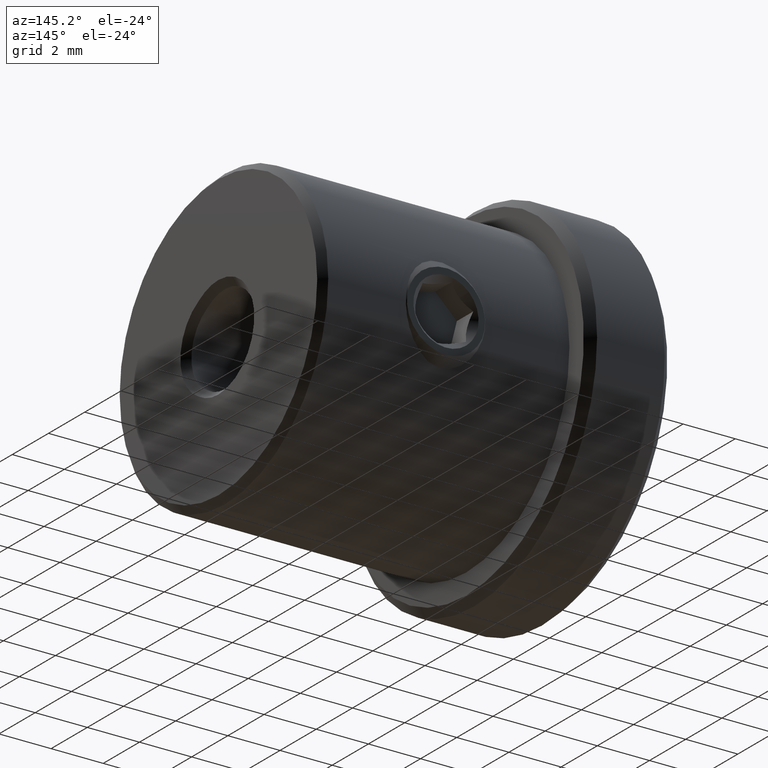
[diagram: clean part render]
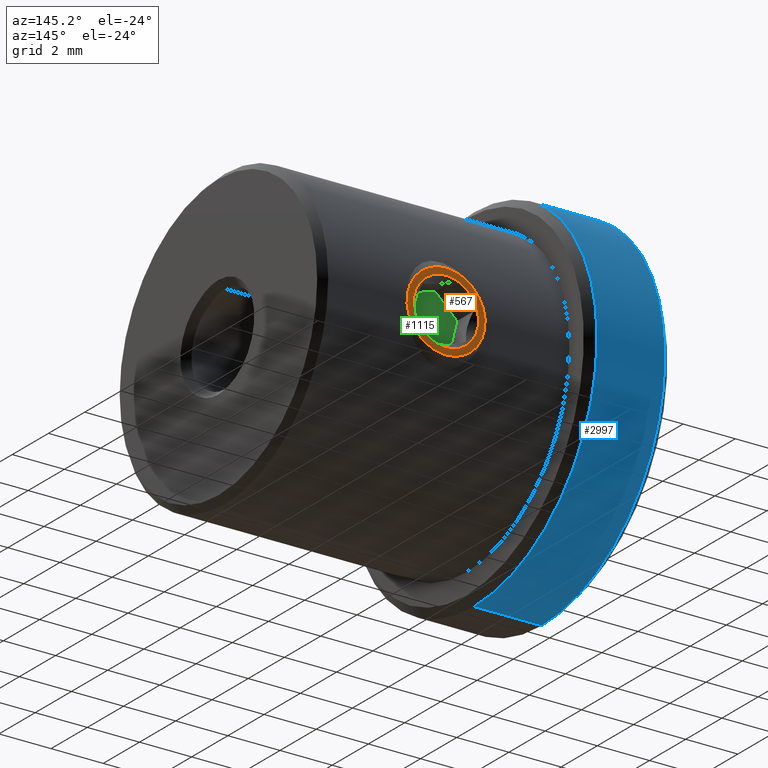
[diagram: same view with three faces highlighted in distinct colors, each labeled with its STEP entity id]
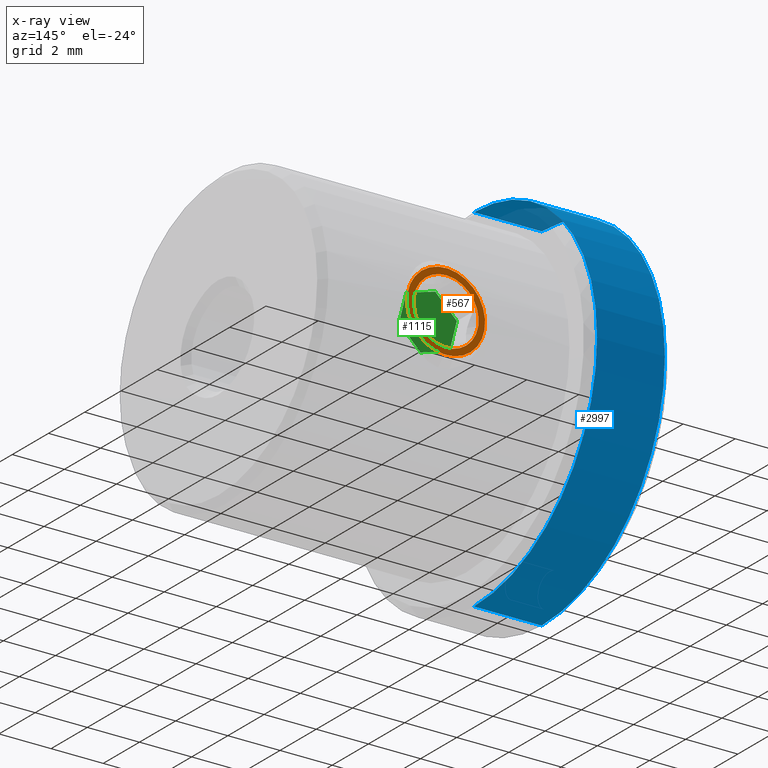
[diagram: x-ray of the same camera — body ghosted, the three highlighted faces saturated]
A machine part, auxiliary view with three faces highlighted in distinct colors.
The next image is the same camera in x-ray (body ghosted, the three faces saturated) — at least one of them is partly hidden behind the body in this view.
Their STEP definitions:

[orange] entity #567 — the highlighted planar face has unit normal (-0, 1, 0).
#18 = DIRECTION ( 'NONE',  ( 0.000000000000000000, 0.000000000000000000, 1.000000000000000000 ) ) ;
#29 = CARTESIAN_POINT ( 'NONE',  ( 0.000000000000000000, 3.000000000000000000, 0.000000000000000000 ) ) ;
#67 = CARTESIAN_POINT ( 'NONE',  ( 0.000000000000000000, 3.000000000000000000, 0.000000000000000000 ) ) ;
#77 = VERTEX_POINT ( 'NONE', #579 ) ;
#146 = EDGE_LOOP ( 'NONE', ( #1296, #1212 ) ) ;
#293 = VERTEX_POINT ( 'NONE', #1456 ) ;
#368 = AXIS2_PLACEMENT_3D ( 'NONE', #2142, #932, #2096 ) ;
#391 = CARTESIAN_POINT ( 'NONE',  ( 0.000000000000000000, 3.000000000000000000, 1.250000000000000000 ) ) ;
#520 = AXIS2_PLACEMENT_3D ( 'NONE', #1220, #2419, #18 ) ;
#567 = ADVANCED_FACE ( 'NONE', ( #2114, #2815 ), #748, .T. ) ;
#579 = CARTESIAN_POINT ( 'NONE',  ( 0.000000000000000000, 3.000000000000000000, -1.500000000000000444 ) ) ;
#748 = PLANE ( 'NONE',  #2220 ) ;
#861 = CIRCLE ( 'NONE', #368, 1.250000000000000000 ) ;
#932 = DIRECTION ( 'NONE',  ( 0.000000000000000000, 1.000000000000000000, 0.000000000000000000 ) ) ;
#966 = EDGE_CURVE ( 'NONE', #293, #2665, #2516, .T. ) ;
#1028 = DIRECTION ( 'NONE',  ( 0.000000000000000000, 1.000000000000000000, 0.000000000000000000 ) ) ;
#1212 = ORIENTED_EDGE ( 'NONE', *, *, #1739, .T. ) ;
#1220 = CARTESIAN_POINT ( 'NONE',  ( 0.000000000000000000, 3.000000000000000000, 0.000000000000000000 ) ) ;
#1296 = ORIENTED_EDGE ( 'NONE', *, *, #2138, .T. ) ;
#1411 = CIRCLE ( 'NONE', #520, 1.500000000000000444 ) ;
#1456 = CARTESIAN_POINT ( 'NONE',  ( 1.530808498934191571E-16, 3.000000000000000000, -1.250000000000000000 ) ) ;
#1665 = CIRCLE ( 'NONE', #2348, 1.500000000000000444 ) ;
#1697 = DIRECTION ( 'NONE',  ( 0.000000000000000000, -0.000000000000000000, 1.000000000000000000 ) ) ;
#1739 = EDGE_CURVE ( 'NONE', #1828, #77, #1411, .T. ) ;
#1828 = VERTEX_POINT ( 'NONE', #1958 ) ;
#1891 = EDGE_CURVE ( 'NONE', #2665, #293, #861, .T. ) ;
#1958 = CARTESIAN_POINT ( 'NONE',  ( 2.143131898507868297E-16, 3.000000000000000000, 1.500000000000000444 ) ) ;
#1999 = DIRECTION ( 'NONE',  ( 0.000000000000000000, 0.000000000000000000, 1.000000000000000000 ) ) ;
#2070 = ORIENTED_EDGE ( 'NONE', *, *, #966, .F. ) ;
#2096 = DIRECTION ( 'NONE',  ( 0.000000000000000000, 0.000000000000000000, 1.000000000000000000 ) ) ;
#2114 = FACE_BOUND ( 'NONE', #2395, .T. ) ;
#2138 = EDGE_CURVE ( 'NONE', #77, #1828, #1665, .T. ) ;
#2142 = CARTESIAN_POINT ( 'NONE',  ( 0.000000000000000000, 3.000000000000000000, 0.000000000000000000 ) ) ;
#2169 = AXIS2_PLACEMENT_3D ( 'NONE', #2441, #1028, #1999 ) ;
#2181 = ORIENTED_EDGE ( 'NONE', *, *, #1891, .F. ) ;
#2220 = AXIS2_PLACEMENT_3D ( 'NONE', #67, #2446, #1697 ) ;
#2348 = AXIS2_PLACEMENT_3D ( 'NONE', #29, #2870, #2917 ) ;
#2395 = EDGE_LOOP ( 'NONE', ( #2181, #2070 ) ) ;
#2419 = DIRECTION ( 'NONE',  ( 0.000000000000000000, 1.000000000000000000, 0.000000000000000000 ) ) ;
#2441 = CARTESIAN_POINT ( 'NONE',  ( 0.000000000000000000, 3.000000000000000000, 0.000000000000000000 ) ) ;
#2446 = DIRECTION ( 'NONE',  ( 0.000000000000000000, 1.000000000000000000, 0.000000000000000000 ) ) ;
#2516 = CIRCLE ( 'NONE', #2169, 1.250000000000000000 ) ;
#2665 = VERTEX_POINT ( 'NONE', #391 ) ;
#2815 = FACE_OUTER_BOUND ( 'NONE', #146, .T. ) ;
#2870 = DIRECTION ( 'NONE',  ( 0.000000000000000000, 1.000000000000000000, 0.000000000000000000 ) ) ;
#2917 = DIRECTION ( 'NONE',  ( 0.000000000000000000, 0.000000000000000000, 1.000000000000000000 ) ) ;

[blue] entity #2997 — the highlighted cylindrical surface (partial cylindrical patch) has radius 6.795 mm, axis along (-1, -0, -0).
#6 = DIRECTION ( 'NONE',  ( 0.000000000000000000, 0.000000000000000000, -1.000000000000000000 ) ) ;
#25 = DIRECTION ( 'NONE',  ( -1.000000000000000000, -0.000000000000000000, -0.000000000000000000 ) ) ;
#27 = DIRECTION ( 'NONE',  ( -1.000000000000000000, -0.000000000000000000, -0.000000000000000000 ) ) ;
#163 = EDGE_CURVE ( 'NONE', #677, #3044, #2350, .T. ) ;
#255 = EDGE_CURVE ( 'NONE', #3044, #639, #1205, .T. ) ;
#285 = CARTESIAN_POINT ( 'NONE',  ( 0.3000000000000016542, 0.000000000000000000, 0.000000000000000000 ) ) ;
#382 = FACE_OUTER_BOUND ( 'NONE', #1690, .T. ) ;
#535 = CARTESIAN_POINT ( 'NONE',  ( 2.899999999999996358, 0.000000000000000000, 6.794999999999999929 ) ) ;
#588 = EDGE_CURVE ( 'NONE', #639, #708, #2353, .T. ) ;
#639 = VERTEX_POINT ( 'NONE', #2676 ) ;
#677 = VERTEX_POINT ( 'NONE', #535 ) ;
#708 = VERTEX_POINT ( 'NONE', #2202 ) ;
#828 = ORIENTED_EDGE ( 'NONE', *, *, #163, .T. ) ;
#865 = AXIS2_PLACEMENT_3D ( 'NONE', #285, #1213, #1462 ) ;
#1203 = CARTESIAN_POINT ( 'NONE',  ( 12.69999999999999929, 0.000000000000000000, 6.794999999999999929 ) ) ;
#1205 = LINE ( 'NONE', #1691, #1773 ) ;
#1213 = DIRECTION ( 'NONE',  ( 1.000000000000000000, -0.000000000000000000, -0.000000000000000000 ) ) ;
#1224 = ORIENTED_EDGE ( 'NONE', *, *, #255, .T. ) ;
#1319 = AXIS2_PLACEMENT_3D ( 'NONE', #2520, #2981, #2959 ) ;
#1364 = AXIS2_PLACEMENT_3D ( 'NONE', #2182, #1435, #6 ) ;
#1435 = DIRECTION ( 'NONE',  ( -1.000000000000000000, 0.000000000000000000, 0.000000000000000000 ) ) ;
#1462 = DIRECTION ( 'NONE',  ( 0.000000000000000000, 0.000000000000000000, -1.000000000000000000 ) ) ;
#1690 = EDGE_LOOP ( 'NONE', ( #828, #1224, #2273, #2415 ) ) ;
#1691 = CARTESIAN_POINT ( 'NONE',  ( 12.69999999999999929, 8.321475000206265229E-16, -6.794999999999999929 ) ) ;
#1773 = VECTOR ( 'NONE', #27, 1000.000000000000000 ) ;
#1979 = LINE ( 'NONE', #1203, #2460 ) ;
#2182 = CARTESIAN_POINT ( 'NONE',  ( 2.899999999999996358, 0.000000000000000000, 0.000000000000000000 ) ) ;
#2202 = CARTESIAN_POINT ( 'NONE',  ( 0.3000000000000016542, 0.000000000000000000, 6.794999999999999929 ) ) ;
#2273 = ORIENTED_EDGE ( 'NONE', *, *, #588, .T. ) ;
#2319 = CYLINDRICAL_SURFACE ( 'NONE', #1319, 6.794999999999999929 ) ;
#2350 = CIRCLE ( 'NONE', #1364, 6.794999999999999929 ) ;
#2353 = CIRCLE ( 'NONE', #865, 6.794999999999999929 ) ;
#2415 = ORIENTED_EDGE ( 'NONE', *, *, #2862, .F. ) ;
#2460 = VECTOR ( 'NONE', #25, 1000.000000000000000 ) ;
#2520 = CARTESIAN_POINT ( 'NONE',  ( 12.69999999999999929, 0.000000000000000000, 0.000000000000000000 ) ) ;
#2625 = CARTESIAN_POINT ( 'NONE',  ( 2.899999999999996358, 8.321475000206265229E-16, -6.794999999999999929 ) ) ;
#2676 = CARTESIAN_POINT ( 'NONE',  ( 0.3000000000000016542, 8.321475000206265229E-16, -6.794999999999999929 ) ) ;
#2862 = EDGE_CURVE ( 'NONE', #677, #708, #1979, .T. ) ;
#2959 = DIRECTION ( 'NONE',  ( 0.000000000000000000, 0.000000000000000000, 1.000000000000000000 ) ) ;
#2981 = DIRECTION ( 'NONE',  ( -1.000000000000000000, -0.000000000000000000, -0.000000000000000000 ) ) ;
#2997 = ADVANCED_FACE ( 'NONE', ( #382 ), #2319, .T. ) ;
#3044 = VERTEX_POINT ( 'NONE', #2625 ) ;

[green] entity #1115 — the highlighted planar face has unit normal (-0, 1, 0).
#34 = VERTEX_POINT ( 'NONE', #2259 ) ;
#48 = VERTEX_POINT ( 'NONE', #1032 ) ;
#165 = LINE ( 'NONE', #2735, #863 ) ;
#326 = EDGE_CURVE ( 'NONE', #2674, #2716, #545, .T. ) ;
#403 = CARTESIAN_POINT ( 'NONE',  ( 0.000000000000000000, 2.000000000000000000, 0.000000000000000000 ) ) ;
#432 = ORIENTED_EDGE ( 'NONE', *, *, #2100, .T. ) ;
#545 = LINE ( 'NONE', #1524, #1989 ) ;
#572 = VECTOR ( 'NONE', #880, 1000.000000000000000 ) ;
#601 = DIRECTION ( 'NONE',  ( 0.5000000000000002220, 0.000000000000000000, -0.8660254037844384856 ) ) ;
#610 = VECTOR ( 'NONE', #793, 1000.000000000000227 ) ;
#668 = PLANE ( 'NONE',  #821 ) ;
#682 = ORIENTED_EDGE ( 'NONE', *, *, #2323, .T. ) ;
#716 = EDGE_LOOP ( 'NONE', ( #2370, #1001, #682, #2145, #867, #432 ) ) ;
#793 = DIRECTION ( 'NONE',  ( 0.5000000000000000000, 0.000000000000000000, 0.8660254037844385966 ) ) ;
#821 = AXIS2_PLACEMENT_3D ( 'NONE', #403, #2767, #2816 ) ;
#840 = LINE ( 'NONE', #1293, #1209 ) ;
#863 = VECTOR ( 'NONE', #601, 1000.000000000000114 ) ;
#867 = ORIENTED_EDGE ( 'NONE', *, *, #326, .T. ) ;
#880 = DIRECTION ( 'NONE',  ( -1.000000000000000000, 0.000000000000000000, 0.000000000000000000 ) ) ;
#997 = LINE ( 'NONE', #2012, #610 ) ;
#1001 = ORIENTED_EDGE ( 'NONE', *, *, #2408, .T. ) ;
#1032 = CARTESIAN_POINT ( 'NONE',  ( 1.154700538379251684, 2.000000000000000000, -1.045054068360705129E-16 ) ) ;
#1087 = CARTESIAN_POINT ( 'NONE',  ( -0.5773502691896258421, 2.000000000000000000, 1.000000000000000000 ) ) ;
#1115 = ADVANCED_FACE ( 'NONE', ( #2799 ), #668, .T. ) ;
#1209 = VECTOR ( 'NONE', #2291, 1000.000000000000114 ) ;
#1293 = CARTESIAN_POINT ( 'NONE',  ( 1.154700538379251684, 2.000000000000000000, -1.045054068360705129E-16 ) ) ;
#1342 = CARTESIAN_POINT ( 'NONE',  ( -0.5773502691896260641, 2.000000000000000000, -1.000000000000000000 ) ) ;
#1524 = CARTESIAN_POINT ( 'NONE',  ( -0.5773502691896260641, 2.000000000000000000, -1.000000000000000000 ) ) ;
#1594 = VERTEX_POINT ( 'NONE', #2229 ) ;
#1625 = CARTESIAN_POINT ( 'NONE',  ( -1.154700538379251684, 2.000000000000000000, 1.008611220427901438E-16 ) ) ;
#1854 = CARTESIAN_POINT ( 'NONE',  ( 0.5773502691896256200, 2.000000000000000000, 1.000000000000000000 ) ) ;
#1989 = VECTOR ( 'NONE', #2960, 1000.000000000000000 ) ;
#2012 = CARTESIAN_POINT ( 'NONE',  ( -1.154700538379251684, 2.000000000000000000, 1.008611220427901438E-16 ) ) ;
#2067 = LINE ( 'NONE', #2082, #572 ) ;
#2078 = VECTOR ( 'NONE', #2243, 1000.000000000000000 ) ;
#2082 = CARTESIAN_POINT ( 'NONE',  ( 0.5773502691896252870, 2.000000000000000000, -1.000000000000000000 ) ) ;
#2100 = EDGE_CURVE ( 'NONE', #2716, #1594, #997, .T. ) ;
#2145 = ORIENTED_EDGE ( 'NONE', *, *, #2983, .T. ) ;
#2229 = CARTESIAN_POINT ( 'NONE',  ( -0.5773502691896258421, 2.000000000000000000, 1.000000000000000000 ) ) ;
#2243 = DIRECTION ( 'NONE',  ( 1.000000000000000000, 0.000000000000000000, 0.000000000000000000 ) ) ;
#2259 = CARTESIAN_POINT ( 'NONE',  ( 0.5773502691896252870, 2.000000000000000000, -1.000000000000000000 ) ) ;
#2291 = DIRECTION ( 'NONE',  ( -0.5000000000000004441, 0.000000000000000000, -0.8660254037844383745 ) ) ;
#2323 = EDGE_CURVE ( 'NONE', #48, #34, #840, .T. ) ;
#2337 = EDGE_CURVE ( 'NONE', #1594, #3007, #2726, .T. ) ;
#2370 = ORIENTED_EDGE ( 'NONE', *, *, #2337, .T. ) ;
#2408 = EDGE_CURVE ( 'NONE', #3007, #48, #165, .T. ) ;
#2674 = VERTEX_POINT ( 'NONE', #1342 ) ;
#2716 = VERTEX_POINT ( 'NONE', #1625 ) ;
#2726 = LINE ( 'NONE', #1087, #2078 ) ;
#2735 = CARTESIAN_POINT ( 'NONE',  ( 0.5773502691896256200, 2.000000000000000000, 1.000000000000000000 ) ) ;
#2767 = DIRECTION ( 'NONE',  ( -0.000000000000000000, 1.000000000000000000, 0.000000000000000000 ) ) ;
#2799 = FACE_OUTER_BOUND ( 'NONE', #716, .T. ) ;
#2816 = DIRECTION ( 'NONE',  ( 0.000000000000000000, -0.000000000000000000, 1.000000000000000000 ) ) ;
#2960 = DIRECTION ( 'NONE',  ( -0.4999999999999998890, 0.000000000000000000, 0.8660254037844387076 ) ) ;
#2983 = EDGE_CURVE ( 'NONE', #34, #2674, #2067, .T. ) ;
#3007 = VERTEX_POINT ( 'NONE', #1854 ) ;